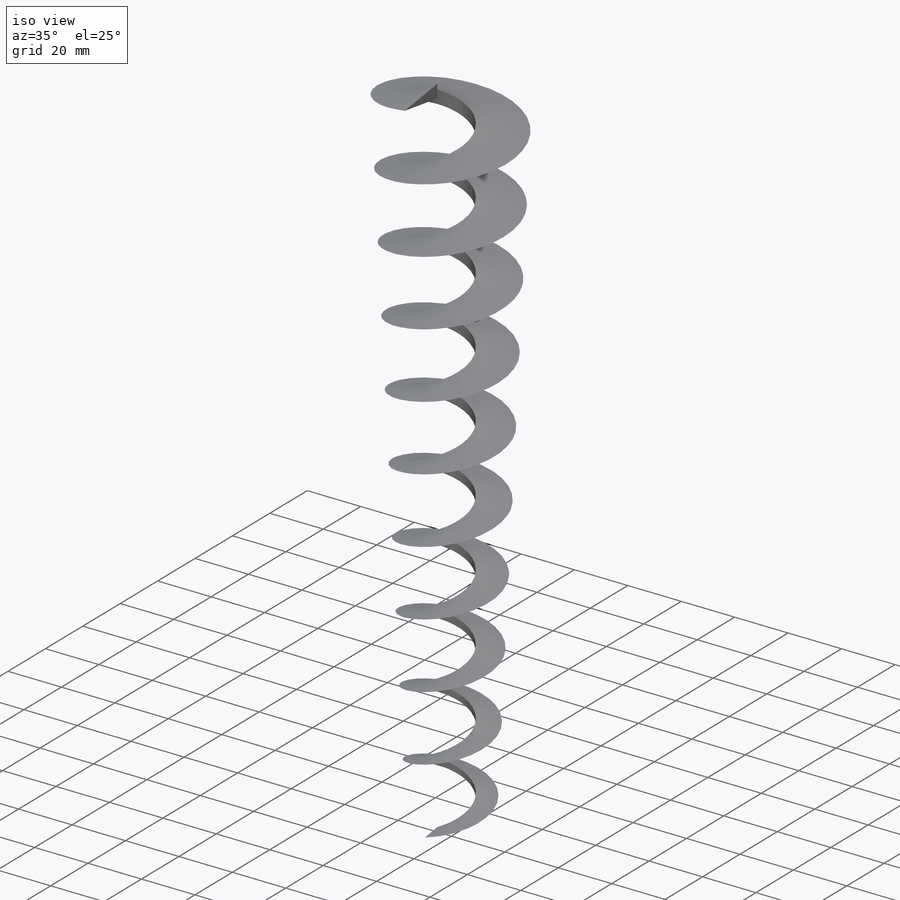
[diagram: iso view]
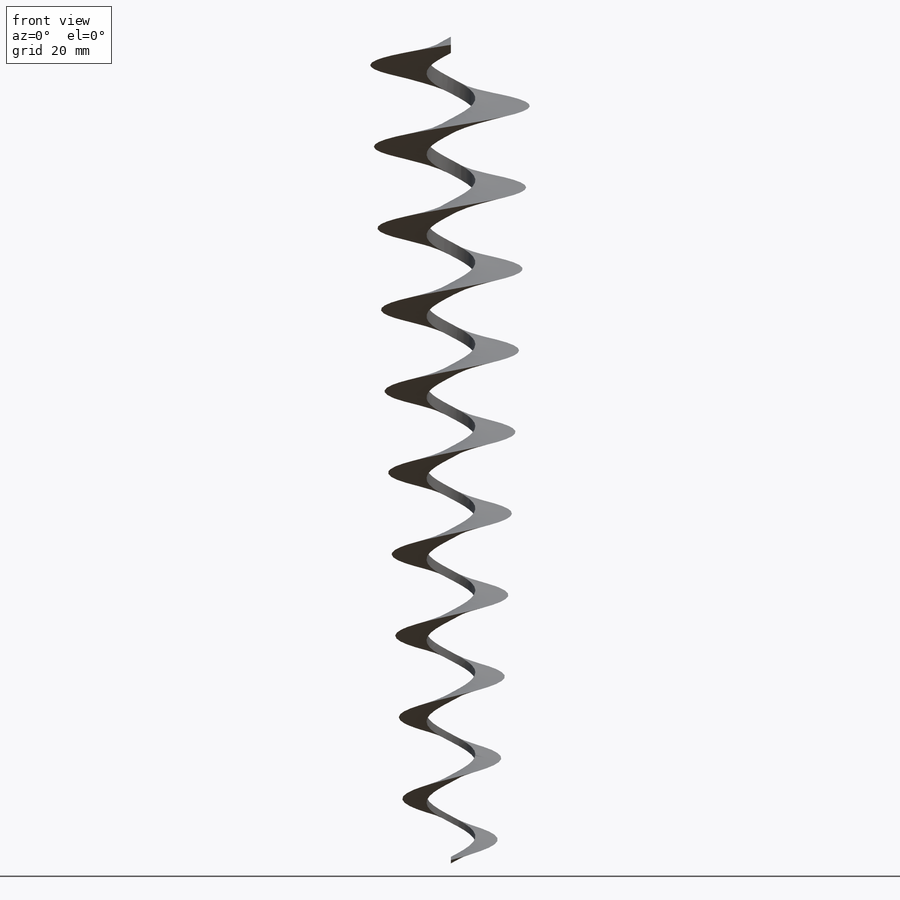
[diagram: front view]
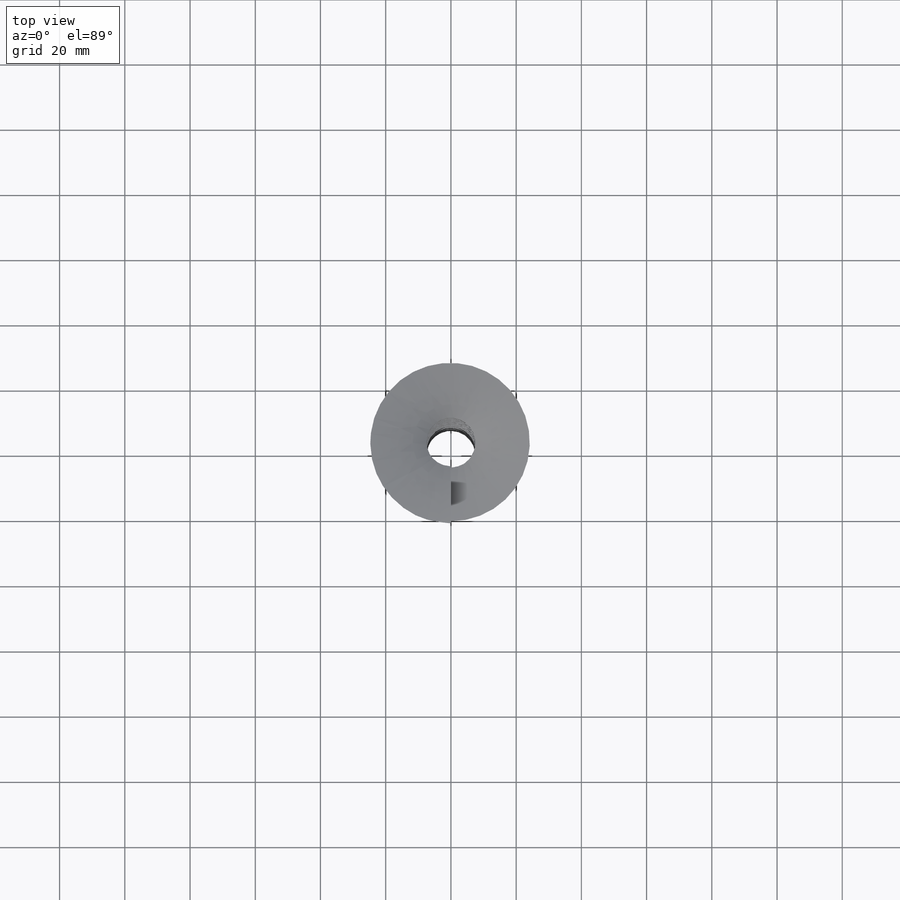
[diagram: top view]
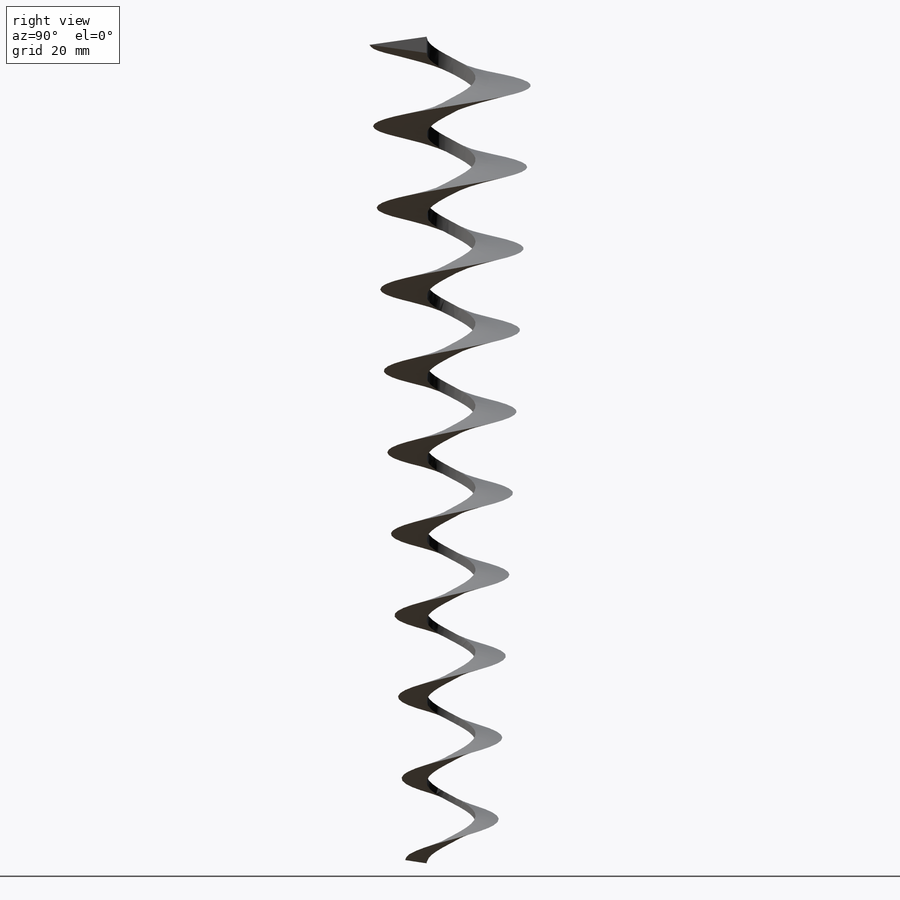
[diagram: right view]
SOLIDWORKS PART (.sldprt)
format: sldprt  version: not decoded by parser v0  size: 530,432 bytes
history: native  units: mm
features: plane x5, sketch x5, material x1, helix x1 (+8 scaffold rows collapsed)
feature tree (20):
  scaffold x8  (default folders/planes/origin — collapsed)
  material  "Material <nicht festgelegt>"
  plane  "Ebene vorne"
  plane  "Ebene oben"
  plane  "Ebene rechts"
  sketch  "Skizze1"  dims[D1=50.0mm]
  helix  "Spirale/Helix1"  Pitch=250mm
  plane  "Ebene1"  Offset=2.5mm
  plane  "Ebene2"  Offset=2.5mm
  sketch  "Skizze7"  dims[D1=15.0mm Spirale/Helix3=0.0 D3=251.5mm D4=25.15mm D5=10000.0mm D7=0.0deg]
  sketch  "Skizze8"  dims[D1=15.0mm Spirale/Helix4=0.0 D3=248.5mm D4=24.85mm D5=10000.0mm D7=0.0deg]
  sketch  "Skizze9"  dims[D1=5.0mm D2=7.5mm D3=25.0mm]
  sketch  "Skizze10"
decode coverage: 5 of 6 modeling features carry decoded parameters
note: suppression state not decoded; provenance and decode notes live in map.json
